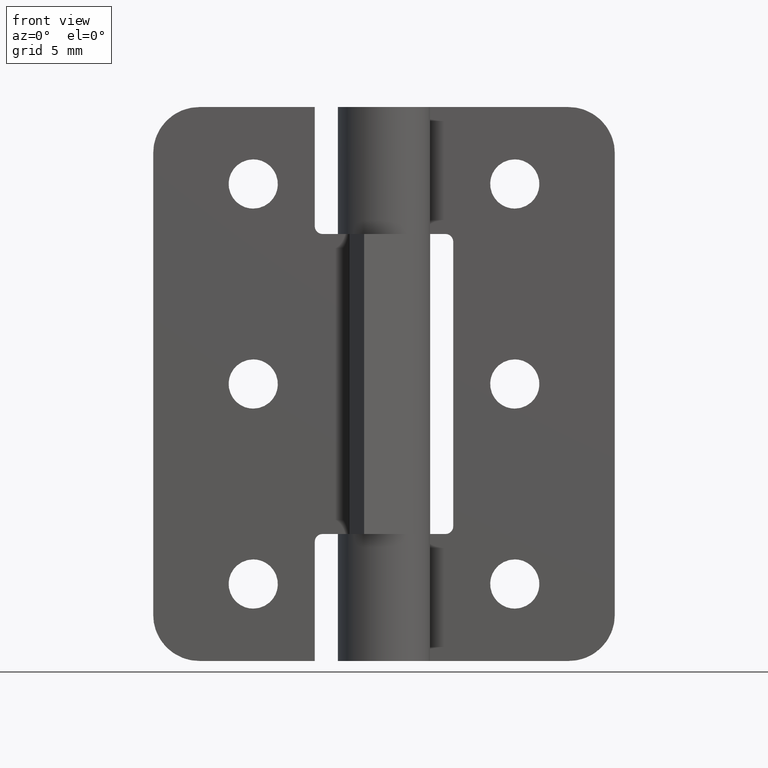
[diagram: clean part render]
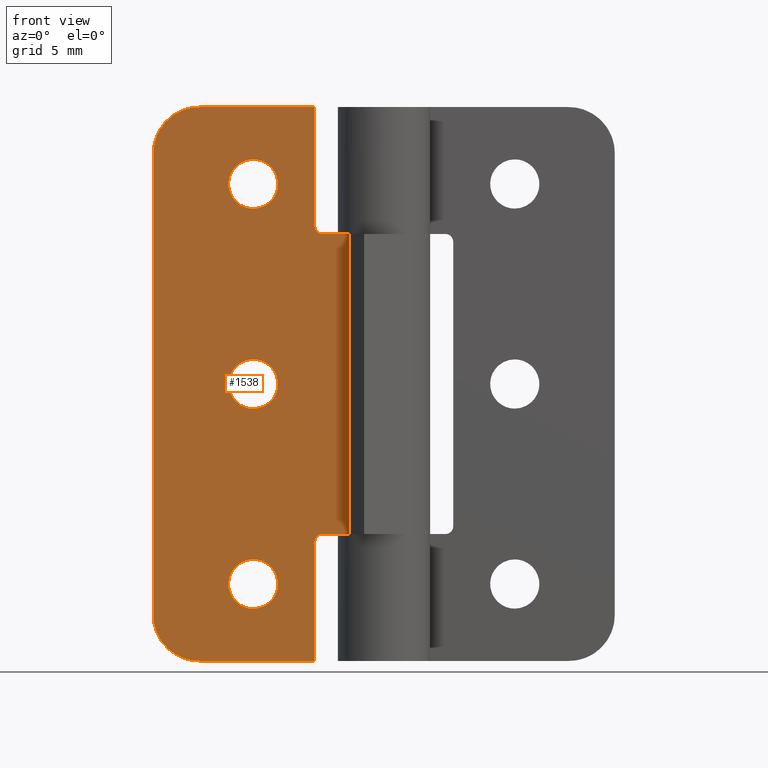
[diagram: same view with one face highlighted and labeled with its STEP entity id]
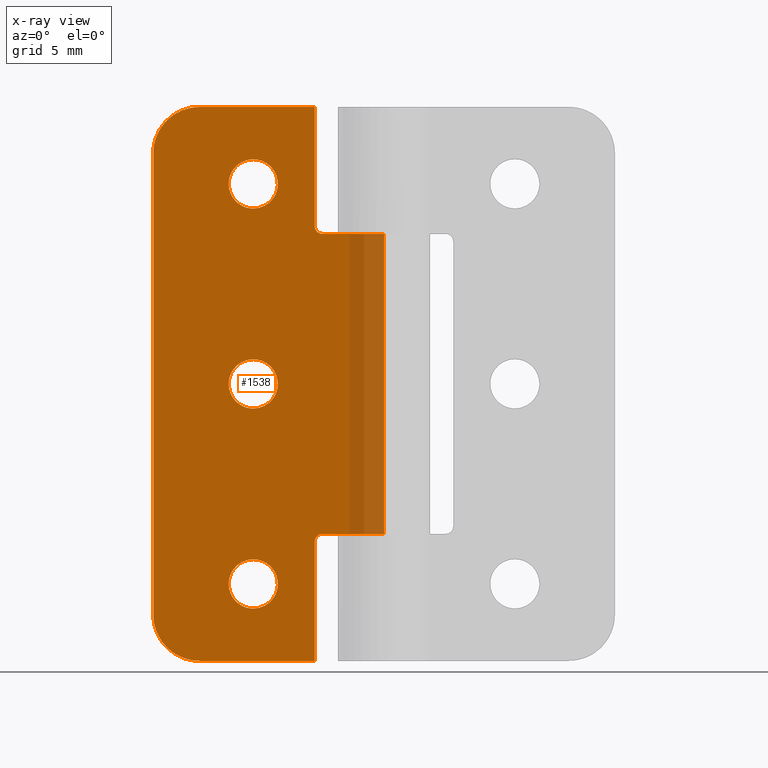
[diagram: x-ray of the same camera — body ghosted, the highlighted face saturated]
A machine part, front view. The second image highlights one B-rep face of the part: STEP entity #1538.
The next image is the same camera in x-ray: the body ghosted, the highlighted face saturated — about 10% of this face is hidden behind the body in this view.
In plain terms, the highlighted face is a freeform B-spline surface patch.
Its self-contained STEP definition (entity closure, byte-faithful):
#347=CARTESIAN_POINT('',(-6.904932266033167,1.499999999999946,30.874458446757028));
#348=VERTEX_POINT('',#347);
#354=CARTESIAN_POINT('',(-8.500000000000000,1.499999999999946,32.599992999999998));
#355=VERTEX_POINT('',#354);
#356=CARTESIAN_POINT('',(-6.904932266033167,1.499999999999946,30.874458446757039));
#357=CARTESIAN_POINT('',(-6.900000000000001,1.499999999999946,30.937128828708950));
#358=CARTESIAN_POINT('',(-6.900000000000000,1.499999999999946,30.999993000000000));
#359=CARTESIAN_POINT('',(-6.900000000000000,1.499999999999946,32.599992999999998));
#360=CARTESIAN_POINT('',(-8.500000000000000,1.499999999999946,32.599992999999998));
#368=(BOUNDED_CURVE()B_SPLINE_CURVE(2,(#356,#357,#358,#359,#360),.UNSPECIFIED.,.F.,.U.)B_SPLINE_CURVE_WITH_KNOTS((3,2,3),(0.736331300615913,0.750000000000000,1.0),.UNSPECIFIED.)CURVE()GEOMETRIC_REPRESENTATION_ITEM()RATIONAL_B_SPLINE_CURVE((0.969723356136642,0.983986122561605,1.0,0.707106781186548,1.0))REPRESENTATION_ITEM(''));
#369=EDGE_CURVE('',#348,#355,#368,.T.);
#371=CARTESIAN_POINT('',(-10.095067733966831,1.499999999999946,31.125527553242971));
#372=VERTEX_POINT('',#371);
#373=CARTESIAN_POINT('',(-8.500000000000000,1.499999999999946,32.599992999999998));
#374=CARTESIAN_POINT('',(-9.979024786507265,1.499999999999947,32.599992999999991));
#375=CARTESIAN_POINT('',(-10.095067733966832,1.499999999999946,31.125527553242975));
#383=(BOUNDED_CURVE()B_SPLINE_CURVE(2,(#373,#374,#375),.UNSPECIFIED.,.F.,.U.)B_SPLINE_CURVE_WITH_KNOTS((3,3),(0.0,0.236331300615912),.UNSPECIFIED.)CURVE()GEOMETRIC_REPRESENTATION_ITEM()RATIONAL_B_SPLINE_CURVE((1.0,0.723120658624943,0.969723356136641))REPRESENTATION_ITEM(''));
#384=EDGE_CURVE('',#355,#372,#383,.T.);
#430=CARTESIAN_POINT('',(-8.500000000000000,1.499999999999946,29.399992999999998));
#431=VERTEX_POINT('',#430);
#432=CARTESIAN_POINT('',(-10.095067733966832,1.499999999999946,31.125527553242971));
#433=CARTESIAN_POINT('',(-10.100000000000001,1.499999999999946,31.062857171291050));
#434=CARTESIAN_POINT('',(-10.100000000000000,1.499999999999946,30.999993000000000));
#435=CARTESIAN_POINT('',(-10.100000000000001,1.499999999999946,29.399992999999998));
#436=CARTESIAN_POINT('',(-8.500000000000000,1.499999999999946,29.399992999999998));
#444=(BOUNDED_CURVE()B_SPLINE_CURVE(2,(#432,#433,#434,#435,#436),.UNSPECIFIED.,.F.,.U.)B_SPLINE_CURVE_WITH_KNOTS((3,2,3),(0.236331300615913,0.250000000000000,0.500000000000000),.UNSPECIFIED.)CURVE()GEOMETRIC_REPRESENTATION_ITEM()RATIONAL_B_SPLINE_CURVE((0.969723356136642,0.983986122561605,1.0,0.707106781186548,1.0))REPRESENTATION_ITEM(''));
#445=EDGE_CURVE('',#372,#431,#444,.T.);
#447=CARTESIAN_POINT('',(-8.500000000000000,1.499999999999946,29.399992999999998));
#448=CARTESIAN_POINT('',(-7.020975213492732,1.499999999999947,29.399993000000002));
#449=CARTESIAN_POINT('',(-6.904932266033168,1.499999999999946,30.874458446757032));
#457=(BOUNDED_CURVE()B_SPLINE_CURVE(2,(#447,#448,#449),.UNSPECIFIED.,.F.,.U.)B_SPLINE_CURVE_WITH_KNOTS((3,3),(0.500000000000000,0.736331300615913),.UNSPECIFIED.)CURVE()GEOMETRIC_REPRESENTATION_ITEM()RATIONAL_B_SPLINE_CURVE((1.0,0.723120658624942,0.969723356136643))REPRESENTATION_ITEM(''));
#458=EDGE_CURVE('',#431,#348,#457,.T.);
#529=CARTESIAN_POINT('',(-6.904932266033167,1.499999999999946,17.874465446757039));
#530=VERTEX_POINT('',#529);
#536=CARTESIAN_POINT('',(-8.500000000000000,1.499999999999946,19.600000000000001));
#537=VERTEX_POINT('',#536);
#538=CARTESIAN_POINT('',(-6.904932266033167,1.499999999999946,17.874465446757036));
#539=CARTESIAN_POINT('',(-6.900000000000001,1.499999999999946,17.937135828708957));
#540=CARTESIAN_POINT('',(-6.900000000000000,1.499999999999946,18.0));
#541=CARTESIAN_POINT('',(-6.900000000000000,1.499999999999946,19.599999999999998));
#542=CARTESIAN_POINT('',(-8.500000000000000,1.499999999999946,19.600000000000001));
#550=(BOUNDED_CURVE()B_SPLINE_CURVE(2,(#538,#539,#540,#541,#542),.UNSPECIFIED.,.F.,.U.)B_SPLINE_CURVE_WITH_KNOTS((3,2,3),(0.736331300615913,0.750000000000000,1.0),.UNSPECIFIED.)CURVE()GEOMETRIC_REPRESENTATION_ITEM()RATIONAL_B_SPLINE_CURVE((0.969723356136642,0.983986122561605,1.0,0.707106781186548,1.0))REPRESENTATION_ITEM(''));
#551=EDGE_CURVE('',#530,#537,#550,.T.);
#553=CARTESIAN_POINT('',(-10.095067733966831,1.499999999999946,18.125534553242961));
#554=VERTEX_POINT('',#553);
#555=CARTESIAN_POINT('',(-8.500000000000000,1.499999999999946,19.600000000000001));
#556=CARTESIAN_POINT('',(-9.979024786507269,1.499999999999947,19.599999999999998));
#557=CARTESIAN_POINT('',(-10.095067733966834,1.499999999999946,18.125534553242968));
#565=(BOUNDED_CURVE()B_SPLINE_CURVE(2,(#555,#556,#557),.UNSPECIFIED.,.F.,.U.)B_SPLINE_CURVE_WITH_KNOTS((3,3),(0.0,0.236331300615913),.UNSPECIFIED.)CURVE()GEOMETRIC_REPRESENTATION_ITEM()RATIONAL_B_SPLINE_CURVE((1.0,0.723120658624942,0.969723356136643))REPRESENTATION_ITEM(''));
#566=EDGE_CURVE('',#537,#554,#565,.T.);
#612=CARTESIAN_POINT('',(-8.500000000000000,1.499999999999946,16.399999999999999));
#613=VERTEX_POINT('',#612);
#614=CARTESIAN_POINT('',(-10.095067733966834,1.499999999999946,18.125534553242968));
#615=CARTESIAN_POINT('',(-10.100000000000001,1.499999999999947,18.062864171291050));
#616=CARTESIAN_POINT('',(-10.100000000000000,1.499999999999946,18.0));
#617=CARTESIAN_POINT('',(-10.100000000000001,1.499999999999946,16.399999999999999));
#618=CARTESIAN_POINT('',(-8.500000000000000,1.499999999999946,16.399999999999999));
#626=(BOUNDED_CURVE()B_SPLINE_CURVE(2,(#614,#615,#616,#617,#618),.UNSPECIFIED.,.F.,.U.)B_SPLINE_CURVE_WITH_KNOTS((3,2,3),(0.236331300615913,0.250000000000000,0.500000000000000),.UNSPECIFIED.)CURVE()GEOMETRIC_REPRESENTATION_ITEM()RATIONAL_B_SPLINE_CURVE((0.969723356136643,0.983986122561605,1.0,0.707106781186548,1.0))REPRESENTATION_ITEM(''));
#627=EDGE_CURVE('',#554,#613,#626,.T.);
#629=CARTESIAN_POINT('',(-8.500000000000000,1.499999999999946,16.399999999999999));
#630=CARTESIAN_POINT('',(-7.020975213492732,1.499999999999947,16.400000000000006));
#631=CARTESIAN_POINT('',(-6.904932266033168,1.499999999999946,17.874465446757039));
#639=(BOUNDED_CURVE()B_SPLINE_CURVE(2,(#629,#630,#631),.UNSPECIFIED.,.F.,.U.)B_SPLINE_CURVE_WITH_KNOTS((3,3),(0.500000000000000,0.736331300615913),.UNSPECIFIED.)CURVE()GEOMETRIC_REPRESENTATION_ITEM()RATIONAL_B_SPLINE_CURVE((1.0,0.723120658624942,0.969723356136643))REPRESENTATION_ITEM(''));
#640=EDGE_CURVE('',#613,#530,#639,.T.);
#711=CARTESIAN_POINT('',(-6.904932266033166,1.499999999999946,4.874465446756936));
#712=VERTEX_POINT('',#711);
#718=CARTESIAN_POINT('',(-8.500000000000000,1.499999999999946,6.599999999999900));
#719=VERTEX_POINT('',#718);
#720=CARTESIAN_POINT('',(-6.904932266033166,1.499999999999946,4.874465446756936));
#721=CARTESIAN_POINT('',(-6.900000000000000,1.499999999999946,4.937135828708853));
#722=CARTESIAN_POINT('',(-6.900000000000000,1.499999999999946,4.999999999999901));
#723=CARTESIAN_POINT('',(-6.900000000000000,1.499999999999946,6.599999999999900));
#724=CARTESIAN_POINT('',(-8.500000000000000,1.499999999999946,6.599999999999900));
#732=(BOUNDED_CURVE()B_SPLINE_CURVE(2,(#720,#721,#722,#723,#724),.UNSPECIFIED.,.F.,.U.)B_SPLINE_CURVE_WITH_KNOTS((3,2,3),(0.736331300615913,0.750000000000000,1.0),.UNSPECIFIED.)CURVE()GEOMETRIC_REPRESENTATION_ITEM()RATIONAL_B_SPLINE_CURVE((0.969723356136642,0.983986122561605,1.0,0.707106781186548,1.0))REPRESENTATION_ITEM(''));
#733=EDGE_CURVE('',#712,#719,#732,.T.);
#735=CARTESIAN_POINT('',(-10.095067733966831,1.499999999999946,5.125534553242865));
#736=VERTEX_POINT('',#735);
#737=CARTESIAN_POINT('',(-8.500000000000000,1.499999999999946,6.599999999999900));
#738=CARTESIAN_POINT('',(-9.979024786507267,1.499999999999946,6.599999999999899));
#739=CARTESIAN_POINT('',(-10.095067733966834,1.499999999999946,5.125534553242865));
#747=(BOUNDED_CURVE()B_SPLINE_CURVE(2,(#737,#738,#739),.UNSPECIFIED.,.F.,.U.)B_SPLINE_CURVE_WITH_KNOTS((3,3),(0.0,0.236331300615913),.UNSPECIFIED.)CURVE()GEOMETRIC_REPRESENTATION_ITEM()RATIONAL_B_SPLINE_CURVE((1.0,0.723120658624943,0.969723356136642))REPRESENTATION_ITEM(''));
#748=EDGE_CURVE('',#719,#736,#747,.T.);
#794=CARTESIAN_POINT('',(-8.500000000000000,1.499999999999946,3.399999999999900));
#795=VERTEX_POINT('',#794);
#796=CARTESIAN_POINT('',(-10.095067733966834,1.499999999999946,5.125534553242865));
#797=CARTESIAN_POINT('',(-10.100000000000000,1.499999999999946,5.062864171290948));
#798=CARTESIAN_POINT('',(-10.100000000000000,1.499999999999946,4.999999999999901));
#799=CARTESIAN_POINT('',(-10.100000000000001,1.499999999999946,3.399999999999901));
#800=CARTESIAN_POINT('',(-8.500000000000000,1.499999999999946,3.399999999999900));
#808=(BOUNDED_CURVE()B_SPLINE_CURVE(2,(#796,#797,#798,#799,#800),.UNSPECIFIED.,.F.,.U.)B_SPLINE_CURVE_WITH_KNOTS((3,2,3),(0.236331300615913,0.250000000000000,0.500000000000000),.UNSPECIFIED.)CURVE()GEOMETRIC_REPRESENTATION_ITEM()RATIONAL_B_SPLINE_CURVE((0.969723356136642,0.983986122561605,1.0,0.707106781186548,1.0))REPRESENTATION_ITEM(''));
#809=EDGE_CURVE('',#736,#795,#808,.T.);
#811=CARTESIAN_POINT('',(-8.500000000000000,1.499999999999946,3.399999999999900));
#812=CARTESIAN_POINT('',(-7.020975213492732,1.499999999999947,3.399999999999901));
#813=CARTESIAN_POINT('',(-6.904932266033166,1.499999999999946,4.874465446756936));
#821=(BOUNDED_CURVE()B_SPLINE_CURVE(2,(#811,#812,#813),.UNSPECIFIED.,.F.,.U.)B_SPLINE_CURVE_WITH_KNOTS((3,3),(0.500000000000000,0.736331300615913),.UNSPECIFIED.)CURVE()GEOMETRIC_REPRESENTATION_ITEM()RATIONAL_B_SPLINE_CURVE((1.0,0.723120658624942,0.969723356136643))REPRESENTATION_ITEM(''));
#822=EDGE_CURVE('',#795,#712,#821,.T.);
#855=CARTESIAN_POINT('',(-12.0,1.499999999999946,35.999993000000003));
#856=VERTEX_POINT('',#855);
#857=CARTESIAN_POINT('',(-15.0,1.499999999999946,32.999993000000003));
#858=VERTEX_POINT('',#857);
#859=CARTESIAN_POINT('',(-12.0,1.499999999999946,35.999993000000003));
#860=CARTESIAN_POINT('',(-14.999999999999995,1.499999999999946,35.999993000000011));
#861=CARTESIAN_POINT('',(-15.0,1.499999999999946,32.999993000000003));
#869=(BOUNDED_CURVE()B_SPLINE_CURVE(2,(#859,#860,#861),.UNSPECIFIED.,.F.,.U.)CURVE()GEOMETRIC_REPRESENTATION_ITEM()QUASI_UNIFORM_CURVE()RATIONAL_B_SPLINE_CURVE((1.0,0.707106781186548,1.0))REPRESENTATION_ITEM(''));
#870=EDGE_CURVE('',#856,#858,#869,.T.);
#916=CARTESIAN_POINT('',(-15.0,1.499999999999946,3.0));
#917=VERTEX_POINT('',#916);
#918=CARTESIAN_POINT('',(-12.0,1.499999999999946,0.0));
#919=VERTEX_POINT('',#918);
#920=CARTESIAN_POINT('',(-15.0,1.499999999999946,3.0));
#921=CARTESIAN_POINT('',(-14.999999999999995,1.499999999999946,0.0));
#922=CARTESIAN_POINT('',(-12.0,1.499999999999946,0.0));
#930=(BOUNDED_CURVE()B_SPLINE_CURVE(2,(#920,#921,#922),.UNSPECIFIED.,.F.,.U.)CURVE()GEOMETRIC_REPRESENTATION_ITEM()QUASI_UNIFORM_CURVE()RATIONAL_B_SPLINE_CURVE((1.0,0.707106781186548,1.0))REPRESENTATION_ITEM(''));
#931=EDGE_CURVE('',#917,#919,#930,.T.);
#977=CARTESIAN_POINT('',(-4.0,1.500000000000000,27.749993000000000));
#978=VERTEX_POINT('',#977);
#979=CARTESIAN_POINT('',(-4.500000000000000,1.499999999999946,28.249993000000000));
#980=VERTEX_POINT('',#979);
#981=CARTESIAN_POINT('',(-4.0,1.499999999999946,27.749993000000000));
#982=CARTESIAN_POINT('',(-4.500000000000002,1.499999999999946,27.749993000000003));
#983=CARTESIAN_POINT('',(-4.500000000000001,1.499999999999946,28.249993000000000));
#991=(BOUNDED_CURVE()B_SPLINE_CURVE(2,(#981,#982,#983),.UNSPECIFIED.,.F.,.U.)CURVE()GEOMETRIC_REPRESENTATION_ITEM()QUASI_UNIFORM_CURVE()RATIONAL_B_SPLINE_CURVE((1.0,0.707106781186548,1.0))REPRESENTATION_ITEM(''));
#992=EDGE_CURVE('',#978,#980,#991,.T.);
#1038=CARTESIAN_POINT('',(-4.500000000000000,1.499999999999946,7.749999999999901));
#1039=VERTEX_POINT('',#1038);
#1040=CARTESIAN_POINT('',(-4.0,1.500000000000000,8.249999999999901));
#1041=VERTEX_POINT('',#1040);
#1042=CARTESIAN_POINT('',(-4.500000000000000,1.499999999999946,7.749999999999901));
#1043=CARTESIAN_POINT('',(-4.500000000000002,1.500000000000000,8.249999999999901));
#1044=CARTESIAN_POINT('',(-4.0,1.500000000000000,8.249999999999901));
#1052=(BOUNDED_CURVE()B_SPLINE_CURVE(2,(#1042,#1043,#1044),.UNSPECIFIED.,.F.,.U.)CURVE()GEOMETRIC_REPRESENTATION_ITEM()QUASI_UNIFORM_CURVE()RATIONAL_B_SPLINE_CURVE((1.0,0.707106781186548,1.0))REPRESENTATION_ITEM(''));
#1053=EDGE_CURVE('',#1039,#1041,#1052,.T.);
#1090=CARTESIAN_POINT('',(9.184548E-017,1.500000000000000,8.249999999999870));
#1091=VERTEX_POINT('',#1090);
#1092=CARTESIAN_POINT('',(9.184548E-017,1.500000000000000,8.249999999999870));
#1093=CARTESIAN_POINT('',(-4.0,1.500000000000000,8.249999999999901));
#1094=QUASI_UNIFORM_CURVE('',1,(#1092,#1093),.UNSPECIFIED.,.F.,.U.);
#1095=EDGE_CURVE('',#1091,#1041,#1094,.T.);
#1174=CARTESIAN_POINT('',(9.184548E-017,1.500000000000000,27.749993000000050));
#1175=VERTEX_POINT('',#1174);
#1176=CARTESIAN_POINT('',(9.184548E-017,1.500000000000000,27.749993000000050));
#1177=CARTESIAN_POINT('',(-4.0,1.500000000000000,27.749993000000000));
#1178=QUASI_UNIFORM_CURVE('',1,(#1176,#1177),.UNSPECIFIED.,.F.,.U.);
#1179=EDGE_CURVE('',#1175,#978,#1178,.T.);
#1295=CARTESIAN_POINT('',(9.184548E-017,1.500000000000000,27.749993000000050));
#1296=CARTESIAN_POINT('',(9.184548E-017,1.500000000000000,8.249999999999870));
#1297=QUASI_UNIFORM_CURVE('',1,(#1295,#1296),.UNSPECIFIED.,.F.,.U.);
#1298=EDGE_CURVE('',#1175,#1091,#1297,.T.);
#1352=CARTESIAN_POINT('',(-4.500000000000000,1.499999999999946,35.999993000000003));
#1353=VERTEX_POINT('',#1352);
#1354=CARTESIAN_POINT('',(-4.500000000000000,1.499999999999946,28.249993000000000));
#1355=CARTESIAN_POINT('',(-4.500000000000000,1.499999999999946,35.999993000000003));
#1356=QUASI_UNIFORM_CURVE('',1,(#1354,#1355),.UNSPECIFIED.,.F.,.U.);
#1357=EDGE_CURVE('',#980,#1353,#1356,.T.);
#1380=CARTESIAN_POINT('',(-4.500000000000000,1.499999999999946,0.0));
#1381=VERTEX_POINT('',#1380);
#1382=CARTESIAN_POINT('',(-12.0,1.499999999999946,0.0));
#1383=CARTESIAN_POINT('',(-4.500000000000000,1.499999999999946,0.0));
#1384=QUASI_UNIFORM_CURVE('',1,(#1382,#1383),.UNSPECIFIED.,.F.,.U.);
#1385=EDGE_CURVE('',#919,#1381,#1384,.T.);
#1414=CARTESIAN_POINT('',(-15.0,1.499999999999946,32.999993000000003));
#1415=CARTESIAN_POINT('',(-15.0,1.499999999999946,3.0));
#1416=QUASI_UNIFORM_CURVE('',1,(#1414,#1415),.UNSPECIFIED.,.F.,.U.);
#1417=EDGE_CURVE('',#858,#917,#1416,.T.);
#1434=CARTESIAN_POINT('',(-4.500000000000000,1.499999999999946,35.999993000000003));
#1435=CARTESIAN_POINT('',(-12.0,1.499999999999946,35.999993000000003));
#1436=QUASI_UNIFORM_CURVE('',1,(#1434,#1435),.UNSPECIFIED.,.F.,.U.);
#1437=EDGE_CURVE('',#1353,#856,#1436,.T.);
#1454=CARTESIAN_POINT('',(-4.500000000000000,1.499999999999946,0.0));
#1455=CARTESIAN_POINT('',(-4.500000000000000,1.499999999999946,7.749999999999901));
#1456=QUASI_UNIFORM_CURVE('',1,(#1454,#1455),.UNSPECIFIED.,.F.,.U.);
#1457=EDGE_CURVE('',#1381,#1039,#1456,.T.);
#1501=CARTESIAN_POINT('',(-15.749249970927091,1.500000000000000,37.798191904690668));
#1502=CARTESIAN_POINT('',(0.749250373258442,1.500000000000000,37.798191904690668));
#1503=CARTESIAN_POINT('',(-15.749249970927091,1.500000000000000,-1.798200514015767));
#1504=CARTESIAN_POINT('',(0.749250373258442,1.500000000000000,-1.798200514015767));
#1505=B_SPLINE_SURFACE_WITH_KNOTS('',1,1,((#1501,#1503),(#1502,#1504)),.UNSPECIFIED.,.F.,.F.,.U.,(2,2),(2,2),(0.0,16.498500344185530),(0.0,39.596392418706444),.UNSPECIFIED.);
#1506=ORIENTED_EDGE('',*,*,#1417,.T.);
#1507=ORIENTED_EDGE('',*,*,#931,.T.);
#1508=ORIENTED_EDGE('',*,*,#1385,.T.);
#1509=ORIENTED_EDGE('',*,*,#1457,.T.);
#1510=ORIENTED_EDGE('',*,*,#1053,.T.);
#1511=ORIENTED_EDGE('',*,*,#1095,.F.);
#1512=ORIENTED_EDGE('',*,*,#1298,.F.);
#1513=ORIENTED_EDGE('',*,*,#1179,.T.);
#1514=ORIENTED_EDGE('',*,*,#992,.T.);
#1515=ORIENTED_EDGE('',*,*,#1357,.T.);
#1516=ORIENTED_EDGE('',*,*,#1437,.T.);
#1517=ORIENTED_EDGE('',*,*,#870,.T.);
#1518=EDGE_LOOP('',(#1506,#1507,#1508,#1509,#1510,#1511,#1512,#1513,#1514,#1515,#1516,#1517));
#1519=FACE_OUTER_BOUND('',#1518,.T.);
#1520=ORIENTED_EDGE('',*,*,#822,.F.);
#1521=ORIENTED_EDGE('',*,*,#809,.F.);
#1522=ORIENTED_EDGE('',*,*,#748,.F.);
#1523=ORIENTED_EDGE('',*,*,#733,.F.);
#1524=EDGE_LOOP('',(#1520,#1521,#1522,#1523));
#1525=FACE_BOUND('',#1524,.T.);
#1526=ORIENTED_EDGE('',*,*,#640,.F.);
#1527=ORIENTED_EDGE('',*,*,#627,.F.);
#1528=ORIENTED_EDGE('',*,*,#566,.F.);
#1529=ORIENTED_EDGE('',*,*,#551,.F.);
#1530=EDGE_LOOP('',(#1526,#1527,#1528,#1529));
#1531=FACE_BOUND('',#1530,.T.);
#1532=ORIENTED_EDGE('',*,*,#458,.F.);
#1533=ORIENTED_EDGE('',*,*,#445,.F.);
#1534=ORIENTED_EDGE('',*,*,#384,.F.);
#1535=ORIENTED_EDGE('',*,*,#369,.F.);
#1536=EDGE_LOOP('',(#1532,#1533,#1534,#1535));
#1537=FACE_BOUND('',#1536,.T.);
#1538=ADVANCED_FACE('',(#1519,#1525,#1531,#1537),#1505,.F.);